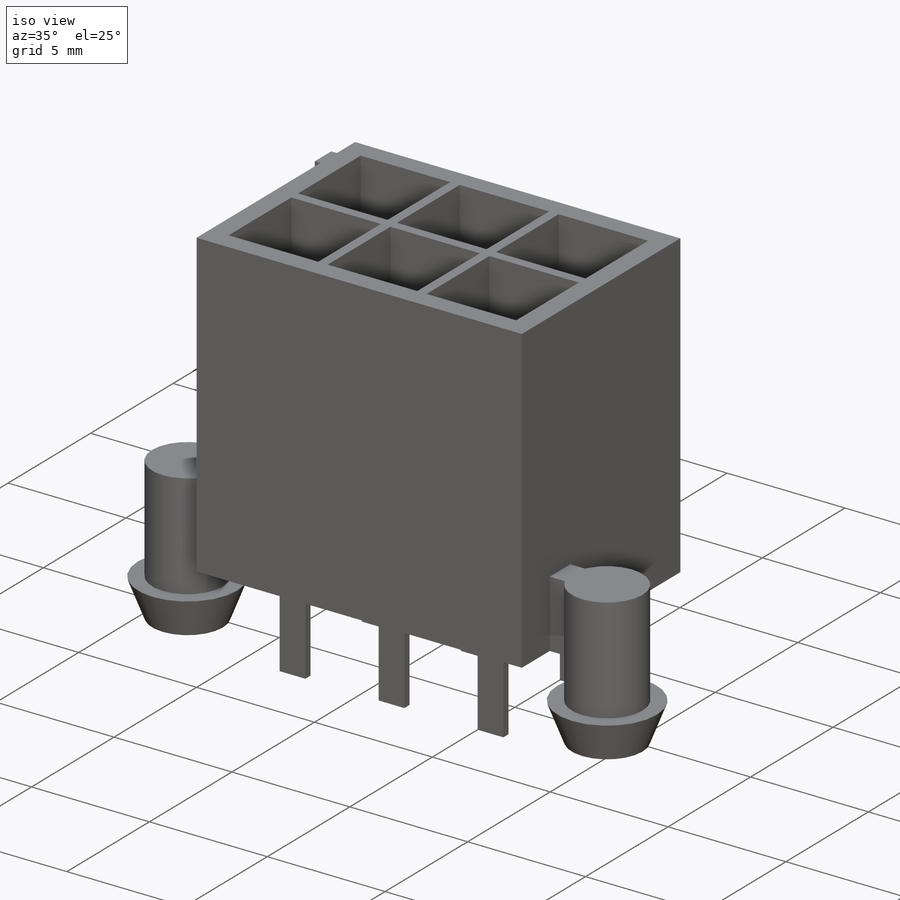
[diagram: iso view]
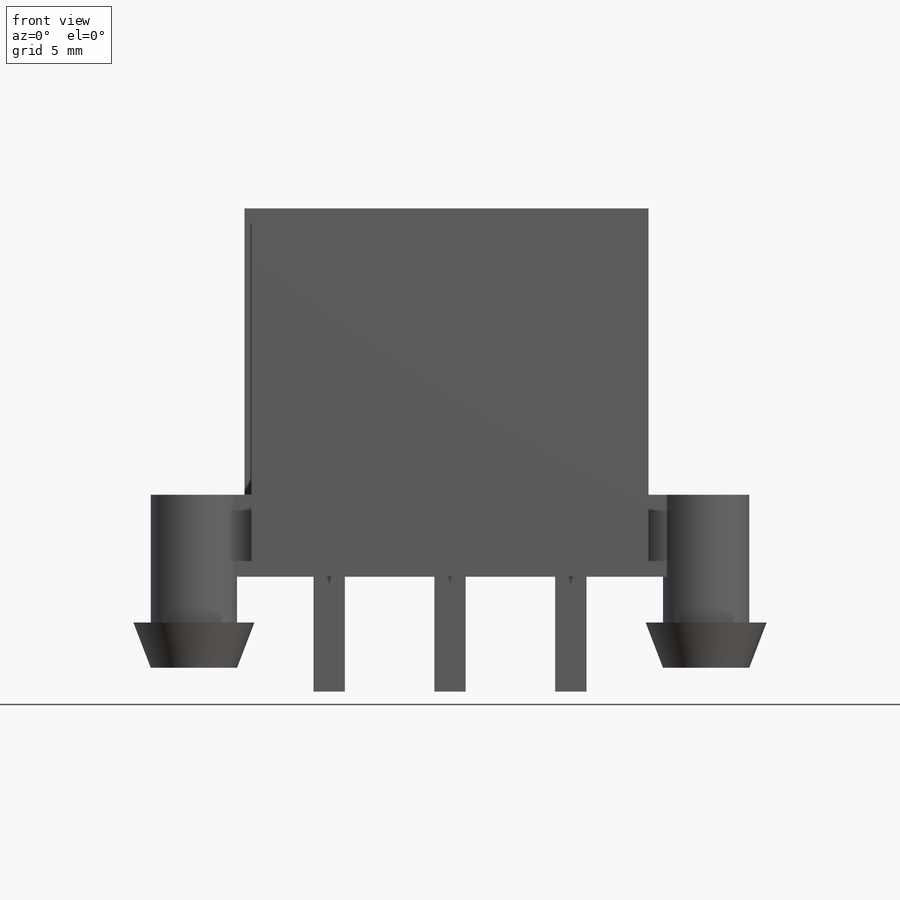
[diagram: front view]
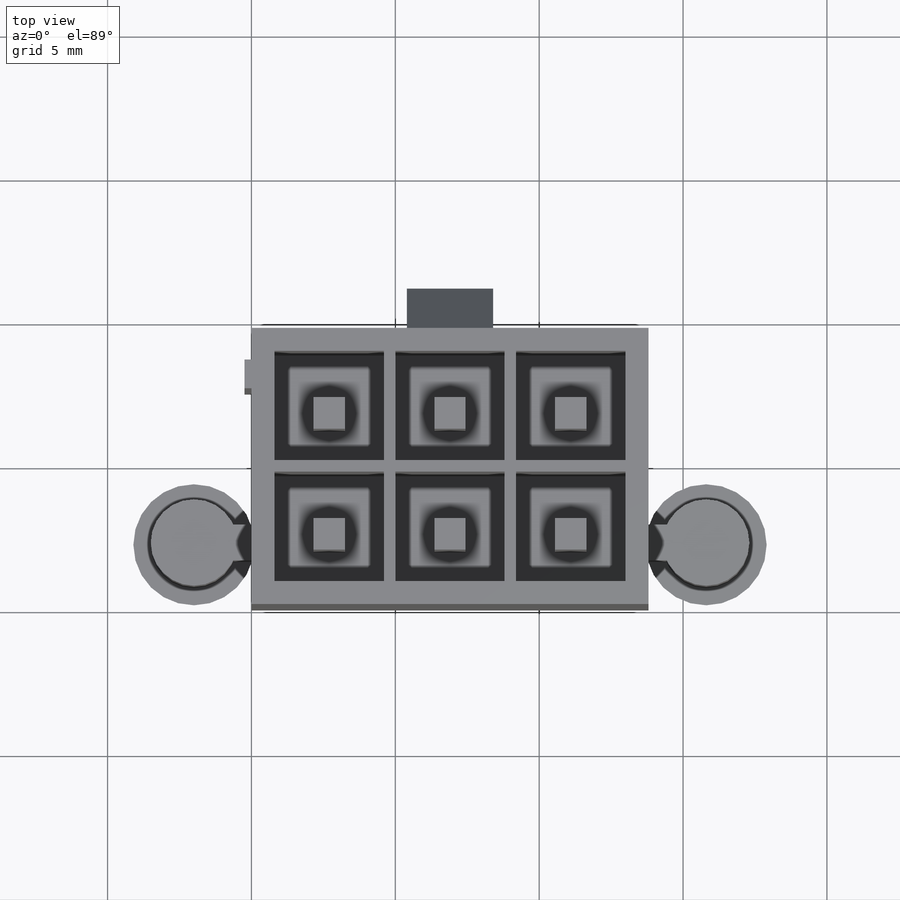
[diagram: top view]
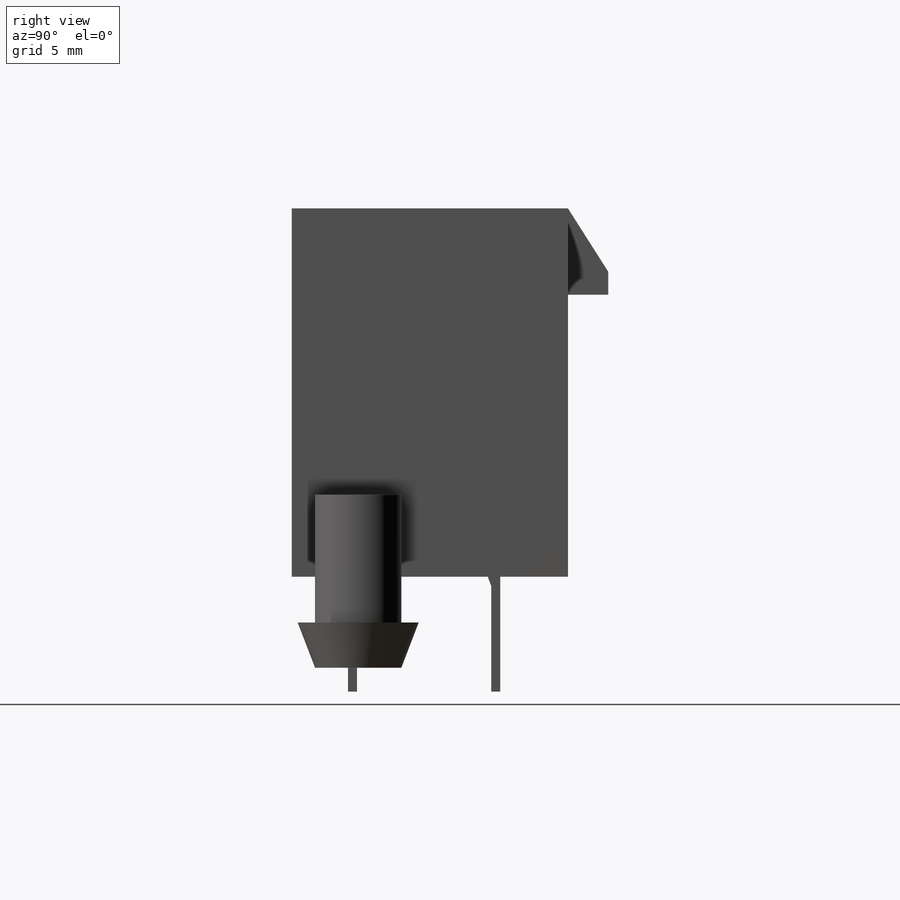
[diagram: right view]
SOLIDWORKS PART (.sldprt)
format: sldprt  version: not decoded by parser v0  size: 437,248 bytes
history: native  units: mm
features: sketch x10, extrude x6, plane x3, cut_extrude x3, material x1, mirror x1, pattern_linear x1 (+11 scaffold rows collapsed)
feature tree (36):
  scaffold x11  (default folders/planes/origin — collapsed)
  material  "Material <not specified>"
  sketch  "Sketch1"  dims[D1=1.41mm]
  sketch  "Sketch3"
  extrude  "Boss-Extrude1"  Depth=12.8mm
  plane  "Plane1"  Offset=2.85mm
  sketch  "Sketch4"
  extrude  "Boss-Extrude2"  Depth=2.85mm
  sketch  "Sketch5"
  extrude  "Boss-Extrude3"  Depth=3.16mm
  sketch  "Sketch6"
  extrude  "Boss-Extrude4"  Depth=1.5725mm
  sketch  "Sketch9"  dims[D1=3.0 D2=2.0]
  plane  "Plane2"  Offset=9.11mm
  cut_extrude  "Cut-Extrude3"  Depth=9.2mm
  sketch  "Sketch10"  dims[D1=1.09mm]
  extrude  "Boss-Extrude6"  Depth=13.1mm
  sketch  "Sketch11"  dims[D1=3.0mm]
  extrude  "Boss-Extrude7"  Depth=1.4mm
  sketch  "Sketch12"
  cut_extrude  "Cut-Extrude4"  Depth=3mm
  sketch  "Sketch13"
  cut_extrude  "Cut-Extrude5"  Depth=1.1mm
  plane  "Plane3"  Offset=4.6mm
  mirror  "Mirror2"
  pattern_linear  "LPattern1"  Count1=3 Count2=1 Spacing1=4.2mm Spacing2=10mm
decode coverage: 14 of 21 modeling features carry decoded parameters
note: suppression state not decoded; provenance and decode notes live in map.json
